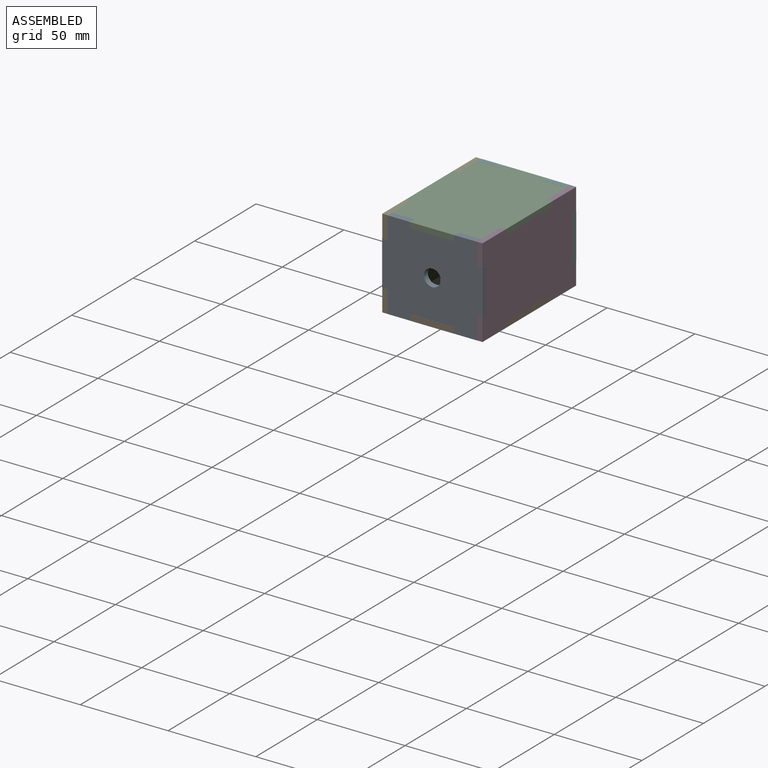
[diagram: assembled view]
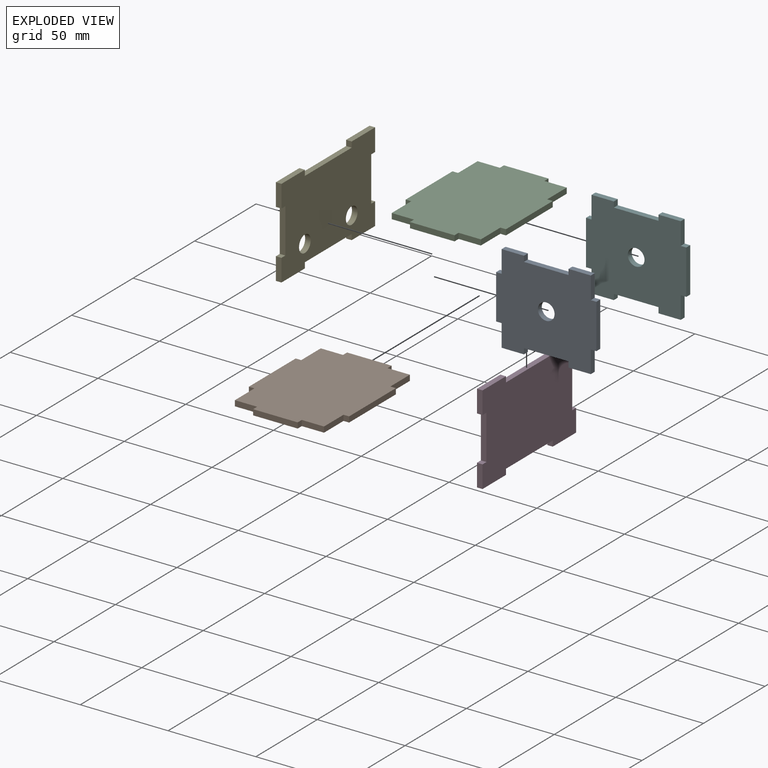
[diagram: exploded view]
GUIDED TOUR — MATED ASSEMBLY (Onshape document 883d8a91d88ea4fd51138d00, AutoMate assembly 883d8a91d88ea4fd51138d00_9885f30605e55b3c3056eece_a26b421365d5f6ebd6190608_default)

This assembly has 6 components, labeled P0..P5 below (a component is one placed occurrence of a part; the same part can appear more than once), held together by 7 mates. A mate is a constraint between two components; its type names the relative motion it leaves free:
  FASTENED — locks the two components together rigidly (no relative motion),
  PARALLEL — keeps the two listed directions parallel.
Axis/direction vectors are unit vectors and 'through' points are millimeter coordinates, both in the assembly's world frame.

MATES
  1. PARALLEL "Parallel 1": P3 <-> P2, direction (0.000, 0.000, 1.000) through (17.59, 37.98, 21.22) mm
  2. PARALLEL "Parallel 2": P3 <-> P2, direction (1.000, 0.000, 0.000) through (19.18, 37.98, -1.01) mm
  3. FASTENED "Fastened 1": P3 <-> P2, direction (-1.000, 0.000, 0.000) through (19.18, 57.03, 24.39) mm
  4. FASTENED "Fastened 2": P4 <-> P2, direction (0.000, -1.000, 0.000) through (-36.35, 57.03, 22.81) mm
  5. FASTENED "Fastened 4": P0 <-> P2, direction (-1.000, 0.000, 0.000) through (3.32, 1.40, 22.81) mm
  6. FASTENED "Fastened 3": P3 <-> P1, direction (0.000, 1.000, 0.000) through (17.59, 18.93, -24.82) mm
  7. FASTENED "Fastened 5": P5 <-> P2, direction (1.000, 0.000, 0.000) through (-22.08, 74.55, 22.81) mm

ASSEMBLY ORDER
  1. P2 — the base component [order heuristic]
  2. P0 — core [order heuristic]
  3. P5 — core [order heuristic]
  4. P1 — core [order heuristic]
  5. P4 [order verified]
  6. P3 [order verified]
Order-tag legend:
  [order verified] — this step's position reverses a verified removal order: the component was checked to insert without passing through the ones already placed.
  [order heuristic] — the first 4 components form the assembly's core: parts whose collision-free extraction could not be verified, listed in mate-graph order.

Of the 6 components, 6 carry the full construction recipe — the FeatureScript program that regenerates the part's solid from scratch; the rest are supplied as boundary geometry only.
Each toured component is shown spotlighted twice — in the assembled view, then in the exploded view, where a leader line traces a displaced component back to its assembled socket (saturated green if recipe-attached, orange if geometry-only; every other component desaturated gray) — followed by its recipe or geometry summary and the mates that hold it.
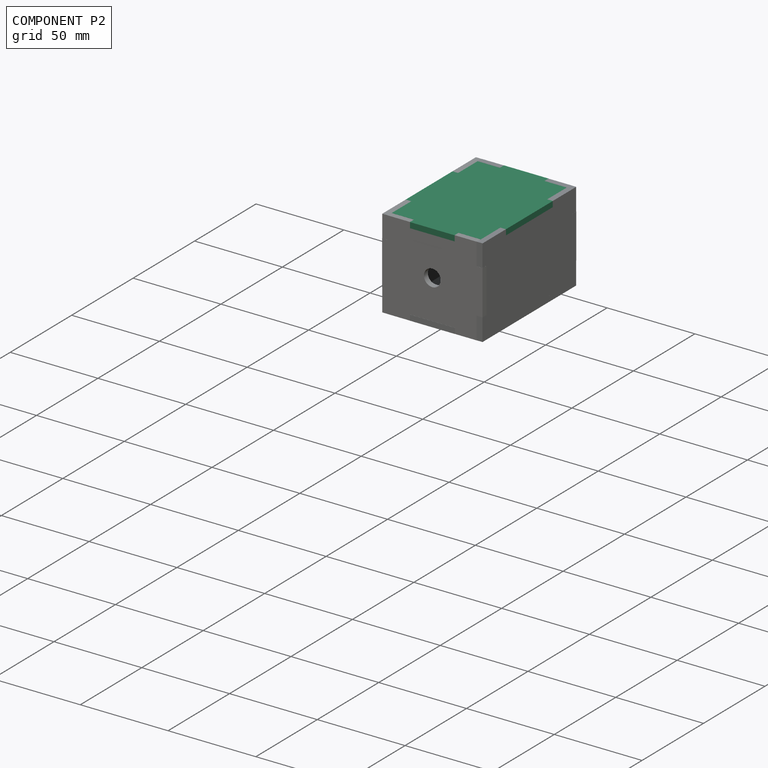
[diagram: component P2 — assembled]
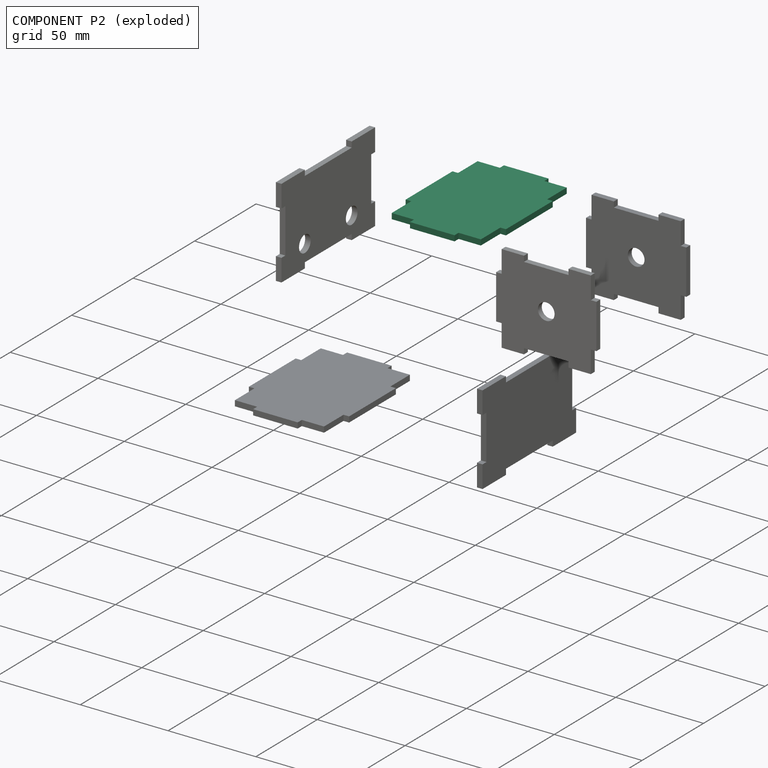
[diagram: component P2 — exploded]
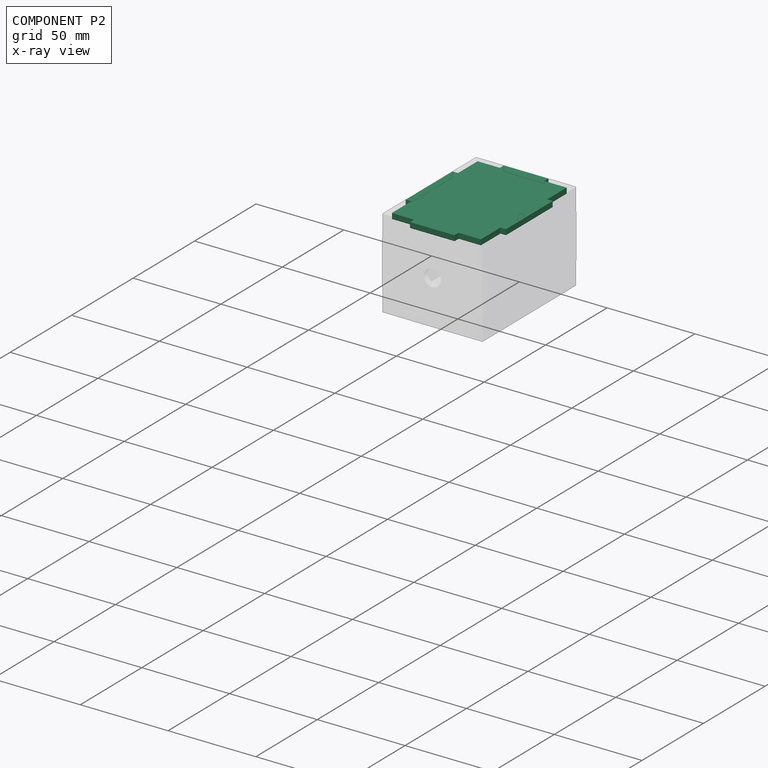
[diagram: component P2 — x-ray view]
COMPONENT P2 — same part as P1 (CADFS 00655369); its construction recipe is shown at P1.
Held by: PARALLEL mate "Parallel 1" to P3; PARALLEL mate "Parallel 2" to P3; FASTENED mate "Fastened 1" to P3; FASTENED mate "Fastened 2" to P4; FASTENED mate "Fastened 4" to P0; FASTENED mate "Fastened 5" to P5.
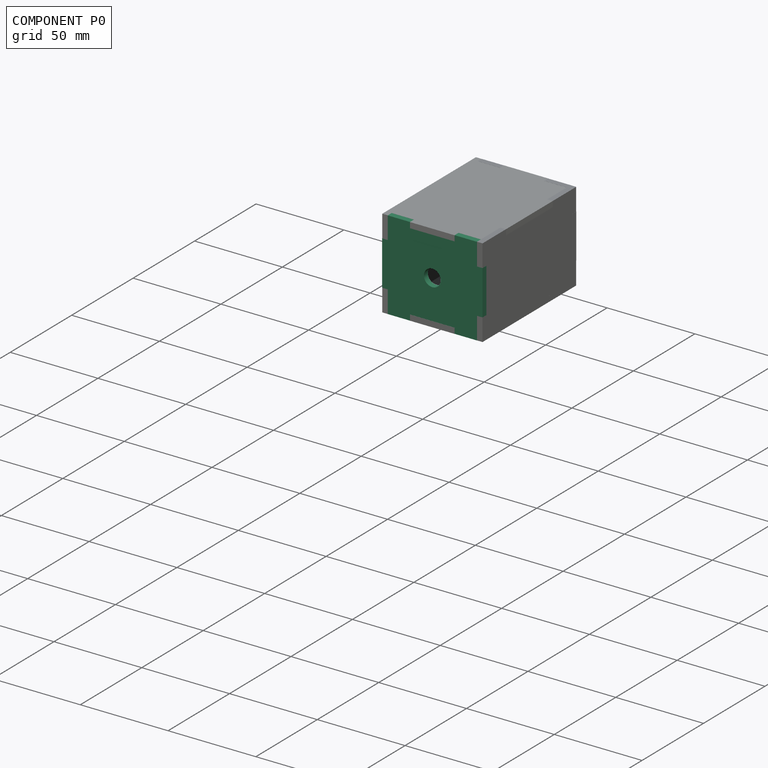
[diagram: component P0 — assembled]
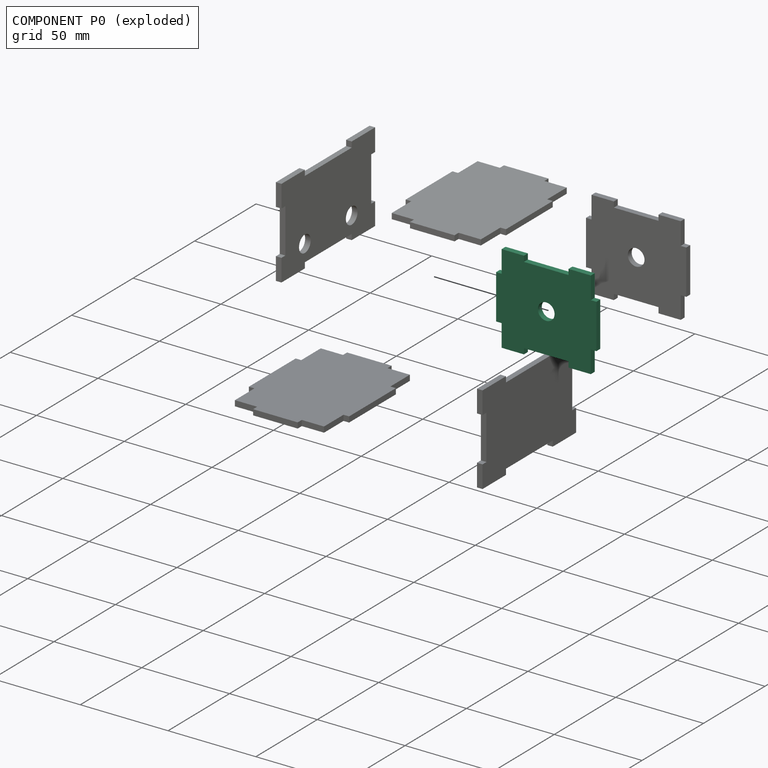
[diagram: component P0 — exploded]
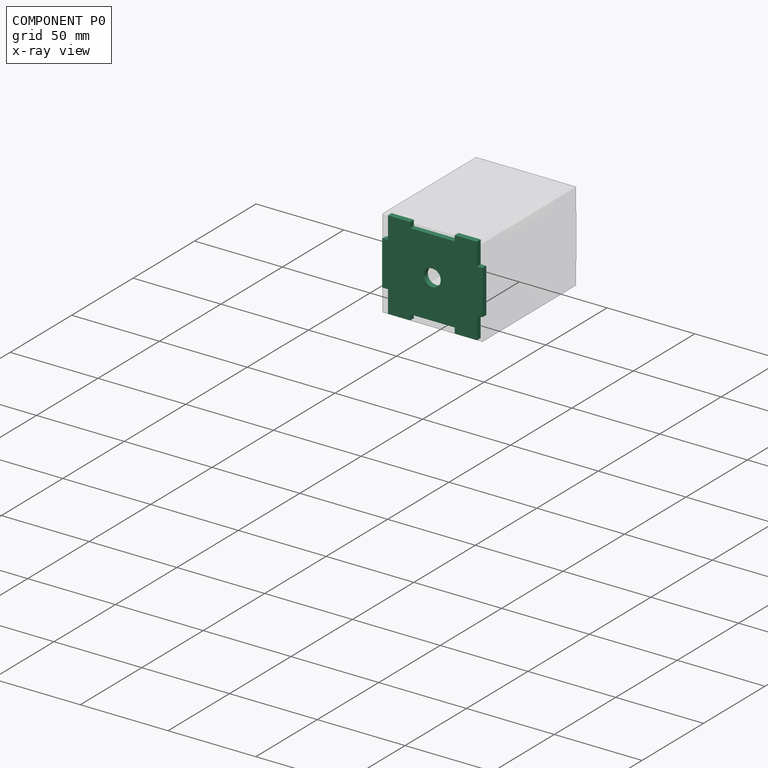
[diagram: component P0 — x-ray view]
COMPONENT P0 — recipe-attached (CADFS 00655371, mesh-verified: the recipe's output STEP matches this component's geometry to below the mesh-comparison resolution (tessellation chordal tolerance ~0.115 mm)).
Held by: FASTENED mate "Fastened 4" to P2.
Construction recipe (FeatureScript — the CAD program that rebuilds this solid; sketch coordinates are in the units given by the * unit suffixes, e.g. mm):

FeatureScript 1511;
import(path : "onshape/std/geometry.fs", version : "1511.0");
import(path : "onshape/std/common.fs", version : "1511.0");
const mm = millimeter;
const VERTEX = EntityType.VERTEX;
const EDGE = EntityType.EDGE;
const FACE = EntityType.FACE;
const BODY = EntityType.BODY;
function v(x, y){return vector(x, y);}
function OD(order){return orderDisambiguation(order);}
function OSD(set){return originalSetDisambiguation(set);}
function TD(topology){return topologyDisambiguation(topology);}
function TDD(query){return trueDependencyDisambiguation(query);}
function sQuery(a, b, c) {return sketchEntityQuery(a, b, c);}

annotation { "Feature Type Name" : "Feature", "Feature Type Description" : "" }
export const myFeature = defineFeature(function(context is Context, id is Id, definition is map)
    precondition{}
    {
        {
            var Q0;
            Q0=qCreatedBy(makeId("Top.planeOp"),FACE);
            var sketch = newSketch(context, id + "F0", { "sketchPlane" : qUnion([Q0])});
            skLineSegment(sketch, "E0.bottom", {"start": v(25.4, 25.4) * mm, "end": v(-25.4, 25.4) * mm});
            skLineSegment(sketch, "E0.top", {"start": v(25.4, -25.4) * mm, "end": v(-25.4, -25.4) * mm});
            skLineSegment(sketch, "E0.left", {"start": v(25.4, 25.4) * mm, "end": v(25.4, -25.4) * mm});
            skLineSegment(sketch, "E0.right", {"start": v(-25.4, 25.4) * mm, "end": v(-25.4, -25.4) * mm});
            skPoint(sketch, "E0.middle", {"position": v(0, 0) * mm});
            skLineSegment(sketch, "E1.bottom", {"start": v(12.7, 22.22) * mm, "end": v(-12.7, 22.22) * mm});
            skLineSegment(sketch, "E1.top", {"start": v(12.7, 28.58) * mm, "end": v(-12.7, 28.58) * mm});
            skLineSegment(sketch, "E1.left", {"start": v(12.7, 22.23) * mm, "end": v(12.7, 28.58) * mm});
            skLineSegment(sketch, "E1.right", {"start": v(-12.7, 22.22) * mm, "end": v(-12.7, 28.57) * mm});
            skPoint(sketch, "E1.middle", {"position": v(0, 25.4) * mm});
            skLineSegment(sketch, "E2.bottom", {"start": v(28.57, 12.7) * mm, "end": v(22.22, 12.7) * mm});
            skLineSegment(sketch, "E2.top", {"start": v(28.57, -12.7) * mm, "end": v(22.22, -12.7) * mm});
            skLineSegment(sketch, "E2.left", {"start": v(28.57, 12.7) * mm, "end": v(28.57, -12.7) * mm});
            skLineSegment(sketch, "E2.right", {"start": v(22.22, 12.7) * mm, "end": v(22.22, -12.7) * mm});
            skPoint(sketch, "E2.middle", {"position": v(25.4, 0) * mm});
            skLineSegment(sketch, "E3.bottom", {"start": v(-22.22, 12.7) * mm, "end": v(-28.57, 12.7) * mm});
            skLineSegment(sketch, "E3.top", {"start": v(-22.22, -12.7) * mm, "end": v(-28.57, -12.7) * mm});
            skLineSegment(sketch, "E3.left", {"start": v(-22.22, 12.7) * mm, "end": v(-22.22, -12.7) * mm});
            skLineSegment(sketch, "E3.right", {"start": v(-28.57, 12.7) * mm, "end": v(-28.57, -12.7) * mm});
            skPoint(sketch, "E3.middle", {"position": v(-25.4, 0) * mm});
            skLineSegment(sketch, "E4.bottom", {"start": v(12.7, -22.23) * mm, "end": v(-12.7, -22.23) * mm});
            skLineSegment(sketch, "E4.top", {"start": v(12.7, -28.58) * mm, "end": v(-12.7, -28.58) * mm});
            skLineSegment(sketch, "E4.left", {"start": v(12.7, -22.23) * mm, "end": v(12.7, -28.58) * mm});
            skLineSegment(sketch, "E4.right", {"start": v(-12.7, -22.23) * mm, "end": v(-12.7, -28.58) * mm});
            skPoint(sketch, "E4.middle", {"position": v(0, -25.4) * mm});
            skCircle(sketch, "E5", {"center": v(0, 0) * mm, "radius": 4.76 * mm});
            skSolve(sketch);
        }
        {
            var Q0;
            {var subQ0=sQuery(id+"F0.wireOp",EDGE,"E1.bottom");Q0=makeQuery(id+"F0.imprint","IMPRINT",FACE,{"disambiguationData":[TD([[makeQuery(id+"F0.imprint","IMPRINT",EDGE,{"derivedFrom":subQ0}),1.0]])]});}
            var Q1;
            {var subQ5=sQuery(id+"F0.wireOp",EDGE,"E3.right");Q1=makeQuery(id+"F0.imprint","IMPRINT",FACE,{"disambiguationData":[TD([[makeQuery(id+"F0.imprint","IMPRINT",EDGE,{"derivedFrom":subQ5}),1.0]])]});}
            var Q2;
            {var subQ5=sQuery(id+"F0.wireOp",EDGE,"E3.left");Q2=makeQuery(id+"F0.imprint","IMPRINT",FACE,{"disambiguationData":[TD([[makeQuery(id+"F0.imprint","IMPRINT",EDGE,{"derivedFrom":subQ5}),-1.0]])]});}
            var Q3;
            {var subQ5=sQuery(id+"F0.wireOp",EDGE,"E2.left");Q3=makeQuery(id+"F0.imprint","IMPRINT",FACE,{"disambiguationData":[TD([[makeQuery(id+"F0.imprint","IMPRINT",EDGE,{"derivedFrom":subQ5}),-1.0]])]});}
            var Q4;
            {var subQ5=sQuery(id+"F0.wireOp",EDGE,"E2.right");Q4=makeQuery(id+"F0.imprint","IMPRINT",FACE,{"disambiguationData":[TD([[makeQuery(id+"F0.imprint","IMPRINT",EDGE,{"derivedFrom":subQ5}),1.0]])]});}
            extrude(context, id + "F1", {"entities" : qUnion([Q0, Q1, Q2, Q3, Q4]), "depth" : 3.17 * mm, "offsetDistance" : 25.4 * mm});
        }
    });
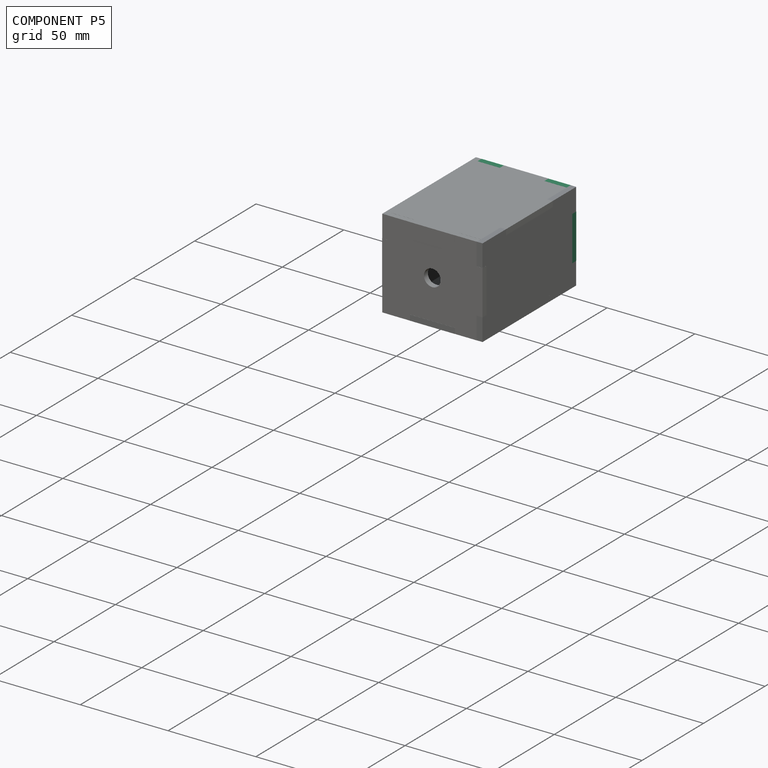
[diagram: component P5 — assembled]
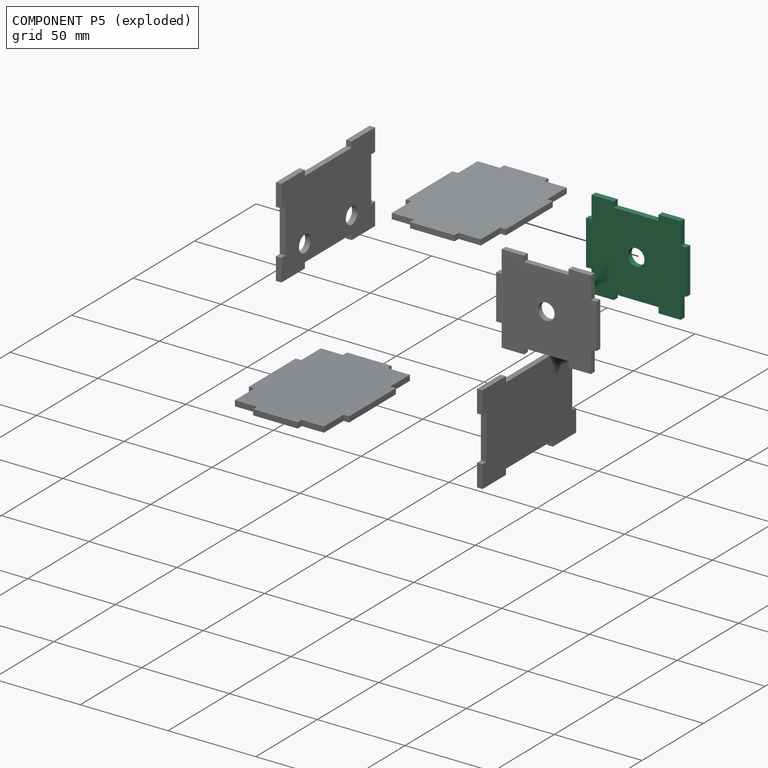
[diagram: component P5 — exploded]
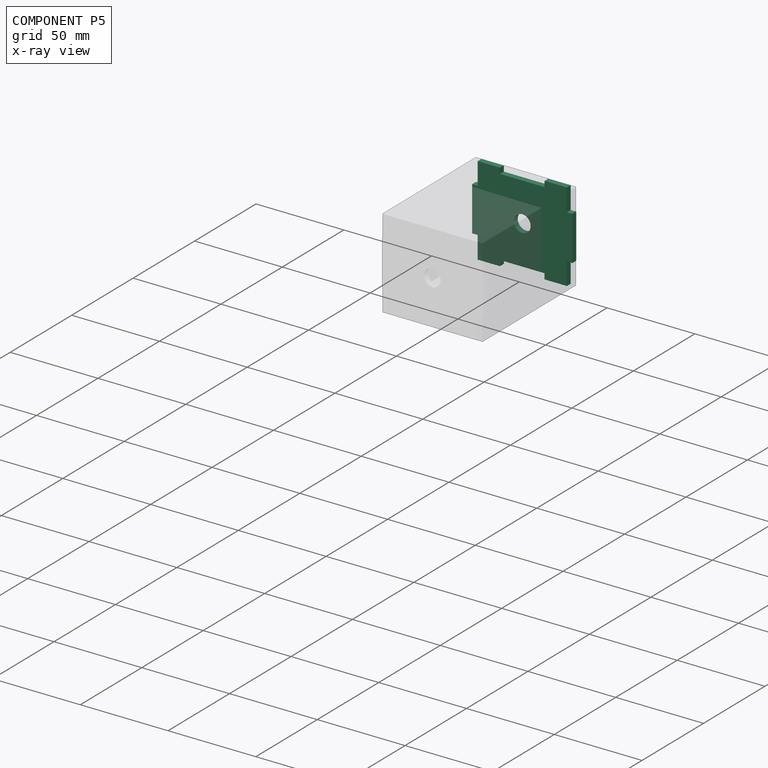
[diagram: component P5 — x-ray view]
COMPONENT P5 — same part as P0 (CADFS 00655371); its construction recipe is shown at P0.
Held by: FASTENED mate "Fastened 5" to P2.
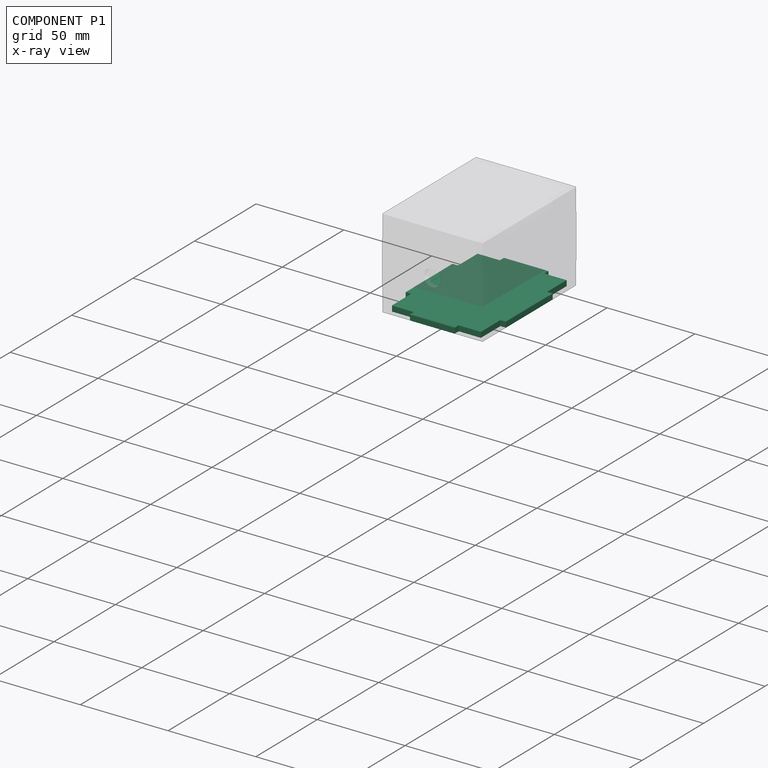
[diagram: component P1 — x-ray view]
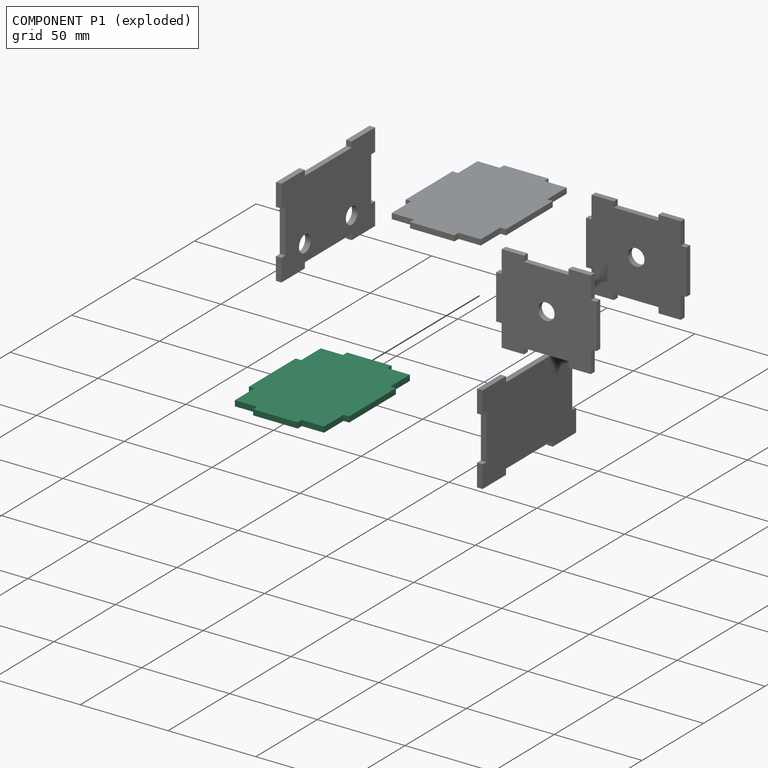
[diagram: component P1 — exploded]
COMPONENT P1 — recipe-attached (CADFS 00655369, mesh-verified: the recipe's output STEP matches this component's geometry to below the mesh-comparison resolution (tessellation chordal tolerance ~0.143 mm)).
Held by: FASTENED mate "Fastened 3" to P3.
Construction recipe (FeatureScript — the CAD program that rebuilds this solid; sketch coordinates are in the units given by the * unit suffixes, e.g. mm):

FeatureScript 1511;
import(path : "onshape/std/geometry.fs", version : "1511.0");
import(path : "onshape/std/common.fs", version : "1511.0");
const mm = millimeter;
const VERTEX = EntityType.VERTEX;
const EDGE = EntityType.EDGE;
const FACE = EntityType.FACE;
const BODY = EntityType.BODY;
function v(x, y){return vector(x, y);}
function OD(order){return orderDisambiguation(order);}
function OSD(set){return originalSetDisambiguation(set);}
function TD(topology){return topologyDisambiguation(topology);}
function TDD(query){return trueDependencyDisambiguation(query);}
function sQuery(a, b, c) {return sketchEntityQuery(a, b, c);}

annotation { "Feature Type Name" : "Feature", "Feature Type Description" : "" }
export const myFeature = defineFeature(function(context is Context, id is Id, definition is map)
    precondition{}
    {
        {
            var Q0;
            Q0=qCreatedBy(makeId("Top.planeOp"),FACE);
            var sketch = newSketch(context, id + "F0", { "sketchPlane" : qUnion([Q0])});
            skLineSegment(sketch, "E0.bottom", {"start": v(25.38, 34.92) * mm, "end": v(12.7, 34.92) * mm});
            skLineSegment(sketch, "E0.top", {"start": v(25.38, -34.92) * mm, "end": v(12.7, -34.92) * mm});
            skLineSegment(sketch, "E0.left", {"start": v(25.38, 34.92) * mm, "end": v(25.38, 19.05) * mm});
            skLineSegment(sketch, "E0.right", {"start": v(-25.38, 34.92) * mm, "end": v(-25.38, 19.05) * mm});
            skPoint(sketch, "E0.middle", {"position": v(0, 0) * mm});
            skLineSegment(sketch, "E1.bottom", {"start": v(28.56, 19.05) * mm, "end": v(25.38, 19.05) * mm});
            skLineSegment(sketch, "E1.top", {"start": v(28.56, -19.05) * mm, "end": v(25.38, -19.05) * mm});
            skLineSegment(sketch, "E1.left", {"start": v(28.56, 19.05) * mm, "end": v(28.56, -19.05) * mm});
            skPoint(sketch, "E1.middle", {"position": v(25.38, 0) * mm});
            skLineSegment(sketch, "E2.MirrorCS", {"start": v(-28.56, 19.05) * mm, "end": v(-28.56, -19.05) * mm});
            skLineSegment(sketch, "E3.MirrorCS", {"start": v(-28.56, 19.05) * mm, "end": v(-25.38, 19.05) * mm});
            skLineSegment(sketch, "E4.MirrorCS", {"start": v(-28.56, -19.05) * mm, "end": v(-25.38, -19.05) * mm});
            skLineSegment(sketch, "E5.bottom", {"start": v(12.7, 38.22) * mm, "end": v(-12.7, 38.22) * mm});
            skLineSegment(sketch, "E5.left", {"start": v(12.7, 38.22) * mm, "end": v(12.7, 34.92) * mm});
            skLineSegment(sketch, "E5.right", {"start": v(-12.7, 38.22) * mm, "end": v(-12.7, 34.92) * mm});
            skPoint(sketch, "E5.middle", {"position": v(0, 34.92) * mm});
            skLineSegment(sketch, "E6.MirrorCS", {"start": v(12.7, -38.22) * mm, "end": v(12.7, -34.92) * mm});
            skLineSegment(sketch, "E7.MirrorCS", {"start": v(12.7, -38.22) * mm, "end": v(-12.7, -38.22) * mm});
            skLineSegment(sketch, "E8.MirrorCS", {"start": v(-12.7, -38.22) * mm, "end": v(-12.7, -34.92) * mm});
            skPoint(sketch, "E9.orphan", {"position": v(-12.7, 31.63) * mm});
            skLineSegment(sketch, "E10.trimOffspring", {"start": v(-12.7, 34.92) * mm, "end": v(-25.38, 34.92) * mm});
            skPoint(sketch, "E11.orphan", {"position": v(12.7, 31.63) * mm});
            skLineSegment(sketch, "E12.trimOffspring", {"start": v(25.38, -19.05) * mm, "end": v(25.38, -34.92) * mm});
            skPoint(sketch, "E13.orphan", {"position": v(22.2, -19.05) * mm});
            skPoint(sketch, "E14.orphan", {"position": v(22.2, 19.05) * mm});
            skPoint(sketch, "E15.orphan", {"position": v(-22.2, 19.05) * mm});
            skPoint(sketch, "E16.MirrorCS.end.orphan", {"position": v(-22.2, -19.05) * mm});
            skLineSegment(sketch, "E17.trimOffspring", {"start": v(-25.38, -19.05) * mm, "end": v(-25.38, -34.92) * mm});
            skPoint(sketch, "E18.MirrorCS.end.orphan", {"position": v(-12.7, -31.63) * mm});
            skPoint(sketch, "E18.MirrorCS.start.orphan", {"position": v(12.7, -31.63) * mm});
            skLineSegment(sketch, "E19.trimOffspring", {"start": v(-12.7, -34.92) * mm, "end": v(-25.38, -34.92) * mm});
            skSolve(sketch);
        }
        {
            var Q0;
            Q0=makeQuery(id+"F0.imprint","IMPRINT",FACE,{"disambiguationData":[TD([[makeQuery(id+"F0.imprint","IMPRINT",EDGE,{"derivedFrom":sQuery(id+"F0.wireOp",EDGE,"E0.bottom")}),1.0]])]});
            extrude(context, id + "F1", {"entities" : qUnion([Q0]), "depth" : 3.17 * mm, "offsetDistance" : 25.4 * mm});
        }
    });
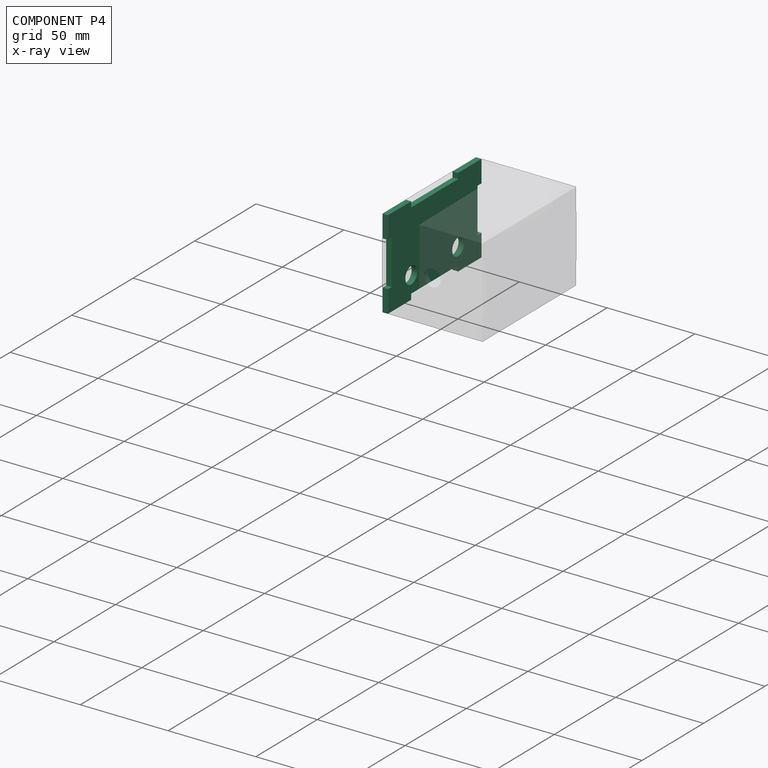
[diagram: component P4 — x-ray view]
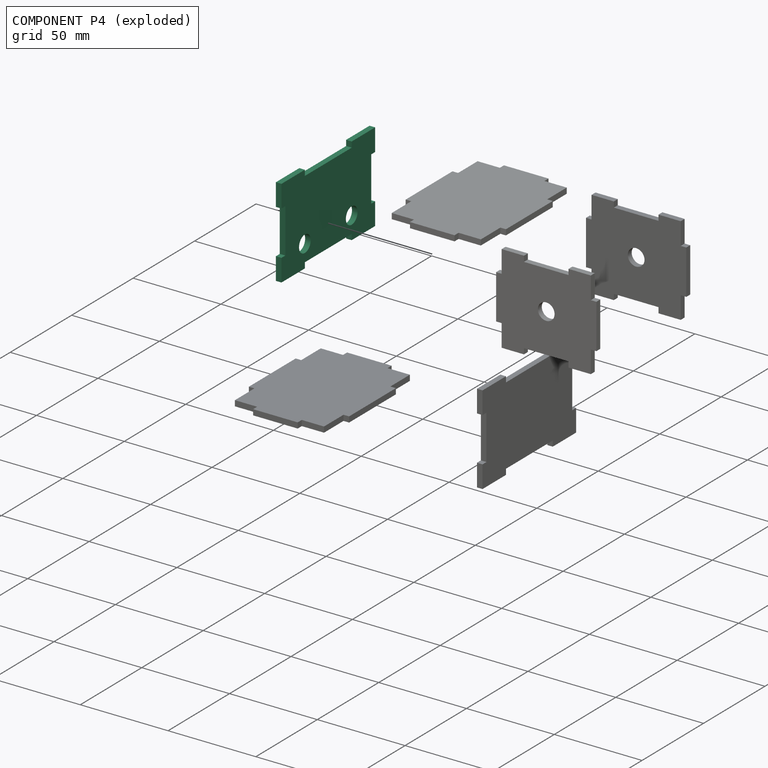
[diagram: component P4 — exploded]
COMPONENT P4 — recipe-attached (CADFS 00655374, mesh-verified: the recipe's output STEP matches this component's geometry to below the mesh-comparison resolution (tessellation chordal tolerance ~0.137 mm)).
Held by: FASTENED mate "Fastened 2" to P2.
Construction recipe (FeatureScript — the CAD program that rebuilds this solid; sketch coordinates are in the units given by the * unit suffixes, e.g. mm):

FeatureScript 1511;
import(path : "onshape/std/geometry.fs", version : "1511.0");
import(path : "onshape/std/common.fs", version : "1511.0");
const mm = millimeter;
const VERTEX = EntityType.VERTEX;
const EDGE = EntityType.EDGE;
const FACE = EntityType.FACE;
const BODY = EntityType.BODY;
function v(x, y){return vector(x, y);}
function OD(order){return orderDisambiguation(order);}
function OSD(set){return originalSetDisambiguation(set);}
function TD(topology){return topologyDisambiguation(topology);}
function TDD(query){return trueDependencyDisambiguation(query);}
function sQuery(a, b, c) {return sketchEntityQuery(a, b, c);}

annotation { "Feature Type Name" : "Feature", "Feature Type Description" : "" }
export const myFeature = defineFeature(function(context is Context, id is Id, definition is map)
    precondition{}
    {
        {
            var Q0;
            Q0=qCreatedBy(makeId("Top.planeOp"),FACE);
            var sketch = newSketch(context, id + "F0", { "sketchPlane" : qUnion([Q0])});
            skLineSegment(sketch, "E0.bottom", {"start": v(25.4, 38.1) * mm, "end": v(12.7, 38.1) * mm});
            skLineSegment(sketch, "E0.top", {"start": v(25.4, -38.1) * mm, "end": v(12.7, -38.1) * mm});
            skLineSegment(sketch, "E0.left", {"start": v(25.4, 38.1) * mm, "end": v(25.4, 19.05) * mm});
            skLineSegment(sketch, "E0.right", {"start": v(-25.4, 38.1) * mm, "end": v(-25.4, 19.05) * mm});
            skPoint(sketch, "E0.middle", {"position": v(0, 0) * mm});
            skLineSegment(sketch, "E1.bottom", {"start": v(28.58, 19.05) * mm, "end": v(22.22, 19.05) * mm, "construction": true});
            skLineSegment(sketch, "E1.top", {"start": v(25.4, -19.05) * mm, "end": v(22.22, -19.05) * mm});
            skLineSegment(sketch, "E1.left", {"start": v(28.58, 19.05) * mm, "end": v(28.58, -19.05) * mm, "construction": true});
            skLineSegment(sketch, "E1.right", {"start": v(22.22, 19.05) * mm, "end": v(22.22, -19.05) * mm});
            skPoint(sketch, "E1.middle", {"position": v(25.4, 0) * mm});
            skLineSegment(sketch, "E2.bottom", {"start": v(12.7, 41.28) * mm, "end": v(-12.7, 41.28) * mm, "construction": true});
            skLineSegment(sketch, "E2.top", {"start": v(12.7, 34.93) * mm, "end": v(-12.7, 34.93) * mm});
            skLineSegment(sketch, "E2.left", {"start": v(12.7, 41.28) * mm, "end": v(12.7, 38.1) * mm, "construction": true});
            skLineSegment(sketch, "E2.right", {"start": v(-12.7, 41.28) * mm, "end": v(-12.7, 38.1) * mm, "construction": true});
            skPoint(sketch, "E2.middle", {"position": v(0, 38.1) * mm});
            skCircle(sketch, "E3", {"center": v(12.7, 19.05) * mm, "radius": 4.76 * mm});
            skCircle(sketch, "E4.MirrorC", {"center": v(12.7, -19.05) * mm, "radius": 4.76 * mm});
            skLineSegment(sketch, "E5.MirrorCS", {"start": v(-22.22, 19.05) * mm, "end": v(-22.22, -19.05) * mm});
            skLineSegment(sketch, "E6.MirrorCS", {"start": v(-25.4, 19.05) * mm, "end": v(-22.22, 19.05) * mm});
            skLineSegment(sketch, "E7.MirrorCS", {"start": v(-25.4, -19.05) * mm, "end": v(-22.22, -19.05) * mm});
            skLineSegment(sketch, "E8.MirrorCS", {"start": v(12.7, -34.93) * mm, "end": v(-12.7, -34.93) * mm});
            skLineSegment(sketch, "E9.MirrorCS", {"start": v(12.7, -41.28) * mm, "end": v(-12.7, -41.28) * mm, "construction": true});
            skLineSegment(sketch, "E10.MirrorCS", {"start": v(12.7, -41.28) * mm, "end": v(12.7, -34.93) * mm, "construction": true});
            skLineSegment(sketch, "E11.MirrorCS", {"start": v(-12.7, -41.28) * mm, "end": v(-12.7, -34.93) * mm, "construction": true});
            skPoint(sketch, "E12.orphan", {"position": v(-28.58, 19.05) * mm});
            skLineSegment(sketch, "E13.trimOffspring", {"start": v(-25.4, -19.05) * mm, "end": v(-25.4, -38.1) * mm});
            skPoint(sketch, "E14.MirrorCS.end.orphan", {"position": v(-28.58, -19.05) * mm});
            skLineSegment(sketch, "E15", {"start": v(25.4, 19.05) * mm, "end": v(22.22, 19.05) * mm});
            skLineSegment(sketch, "E16.trimOffspring", {"start": v(25.4, -19.05) * mm, "end": v(25.4, -38.1) * mm});
            skLineSegment(sketch, "E17", {"start": v(-12.7, -38.1) * mm, "end": v(-12.7, -34.93) * mm});
            skLineSegment(sketch, "E18", {"start": v(12.7, -38.1) * mm, "end": v(12.7, -34.93) * mm});
            skLineSegment(sketch, "E19.trimOffspring", {"start": v(-12.7, -38.1) * mm, "end": v(-25.4, -38.1) * mm});
            skLineSegment(sketch, "E20", {"start": v(12.7, 38.1) * mm, "end": v(12.7, 34.93) * mm});
            skLineSegment(sketch, "E21", {"start": v(-12.7, 38.1) * mm, "end": v(-12.7, 34.93) * mm});
            skLineSegment(sketch, "E22", {"start": v(-12.7, 38.1) * mm, "end": v(-12.7, 34.93) * mm, "construction": true});
            skLineSegment(sketch, "E23", {"start": v(12.7, 38.1) * mm, "end": v(12.7, 34.93) * mm, "construction": true});
            skLineSegment(sketch, "E24", {"start": v(-25.4, 38.1) * mm, "end": v(-12.7, 38.1) * mm});
            skLineSegment(sketch, "E25", {"start": v(12.7, 38.1) * mm, "end": v(25.4, 38.1) * mm});
            skLineSegment(sketch, "E26.trimOffspring", {"start": v(0, 38.1) * mm, "end": v(-25.4, 38.1) * mm, "construction": true});
            skLineSegment(sketch, "E27", {"start": v(-12.7, 38.1) * mm, "end": v(-25.4, 38.1) * mm, "construction": true});
            skSolve(sketch);
        }
        {
            var Q0;
            Q0=makeQuery(id+"F0.imprint","IMPRINT",FACE,{"disambiguationData":[TD([[makeQuery(id+"F0.imprint","IMPRINT",EDGE,{"derivedFrom":sQuery(id+"F0.wireOp",EDGE,"E0.top")}),-1.0]])]});
            extrude(context, id + "F1", {"entities" : qUnion([Q0]), "depth" : 3.17 * mm, "offsetDistance" : 25.4 * mm});
        }
    });
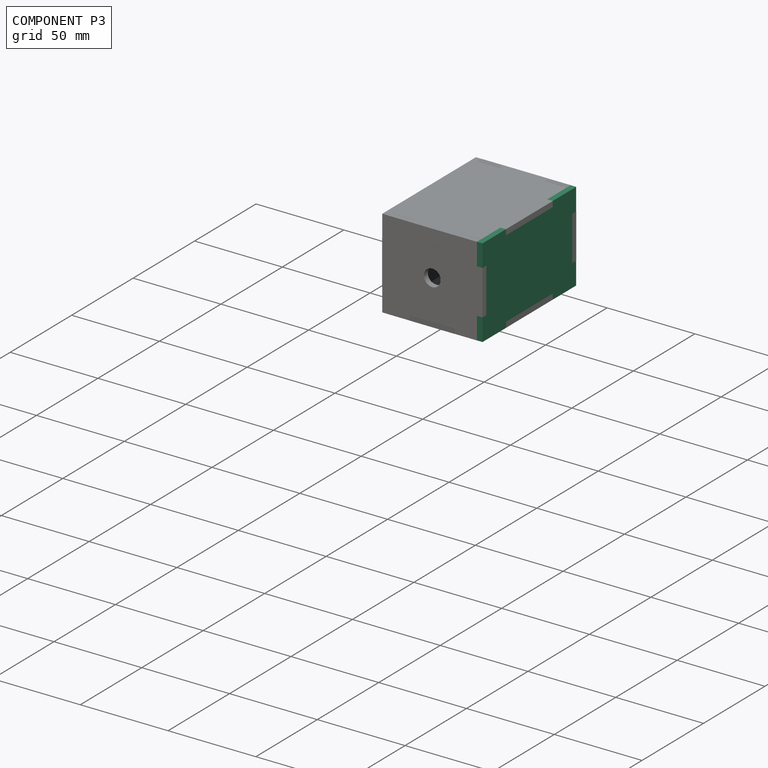
[diagram: component P3 — assembled]
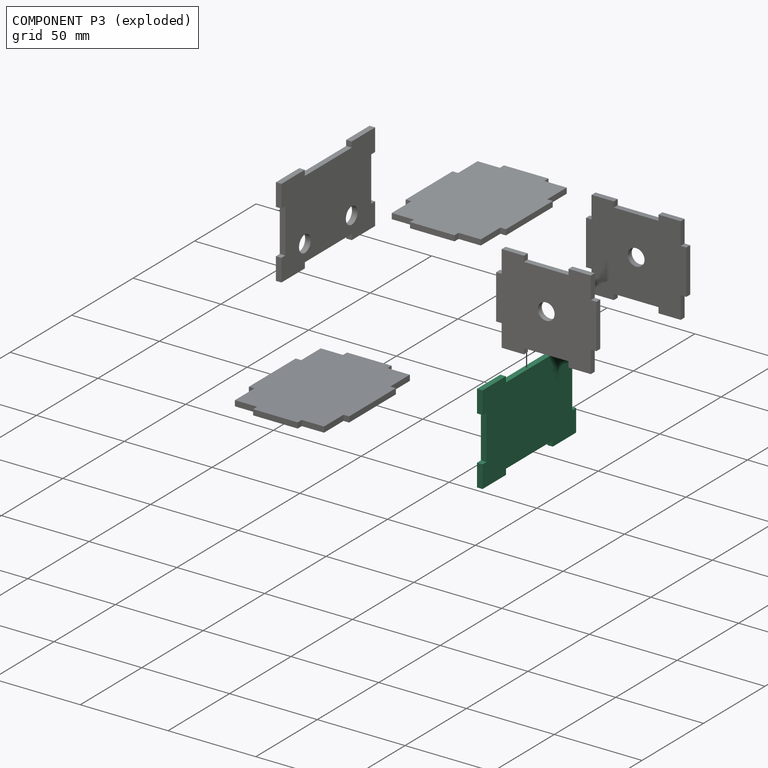
[diagram: component P3 — exploded]
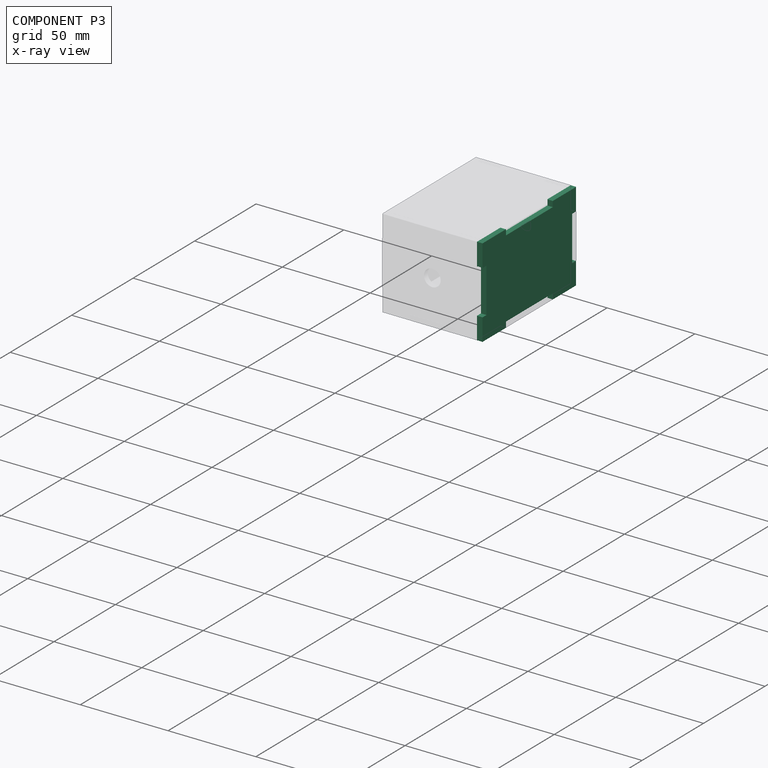
[diagram: component P3 — x-ray view]
COMPONENT P3 — recipe-attached (CADFS 00655373, mesh-verified: the recipe's output STEP matches this component's geometry to below the mesh-comparison resolution (tessellation chordal tolerance ~0.137 mm)).
Held by: PARALLEL mate "Parallel 1" to P2; PARALLEL mate "Parallel 2" to P2; FASTENED mate "Fastened 1" to P2; FASTENED mate "Fastened 3" to P1.
Construction recipe (FeatureScript — the CAD program that rebuilds this solid; sketch coordinates are in the units given by the * unit suffixes, e.g. mm):

FeatureScript 1511;
import(path : "onshape/std/geometry.fs", version : "1511.0");
import(path : "onshape/std/common.fs", version : "1511.0");
const mm = millimeter;
const VERTEX = EntityType.VERTEX;
const EDGE = EntityType.EDGE;
const FACE = EntityType.FACE;
const BODY = EntityType.BODY;
function v(x, y){return vector(x, y);}
function OD(order){return orderDisambiguation(order);}
function OSD(set){return originalSetDisambiguation(set);}
function TD(topology){return topologyDisambiguation(topology);}
function TDD(query){return trueDependencyDisambiguation(query);}
function sQuery(a, b, c) {return sketchEntityQuery(a, b, c);}

annotation { "Feature Type Name" : "Feature", "Feature Type Description" : "" }
export const myFeature = defineFeature(function(context is Context, id is Id, definition is map)
    precondition{}
    {
        {
            var Q0;
            Q0=qCreatedBy(makeId("Top.planeOp"),FACE);
            var sketch = newSketch(context, id + "F0", { "sketchPlane" : qUnion([Q0])});
            skLineSegment(sketch, "E0.bottom", {"start": v(25.36, 36.95) * mm, "end": v(-25.44, 36.95) * mm});
            skLineSegment(sketch, "E0.top", {"start": v(25.36, -39.25) * mm, "end": v(-25.44, -39.25) * mm});
            skLineSegment(sketch, "E0.left", {"start": v(25.36, 36.95) * mm, "end": v(25.36, -39.25) * mm});
            skLineSegment(sketch, "E0.right", {"start": v(-25.44, 36.95) * mm, "end": v(-25.44, -39.25) * mm});
            skPoint(sketch, "E0.middle", {"position": v(-0.04, -1.15) * mm});
            skLineSegment(sketch, "E1.bottom", {"start": v(12.66, 40.12) * mm, "end": v(-12.74, 40.12) * mm});
            skLineSegment(sketch, "E1.top", {"start": v(12.66, 33.77) * mm, "end": v(-12.74, 33.77) * mm});
            skLineSegment(sketch, "E1.left", {"start": v(12.66, 40.12) * mm, "end": v(12.66, 33.77) * mm});
            skLineSegment(sketch, "E1.right", {"start": v(-12.74, 40.12) * mm, "end": v(-12.74, 33.77) * mm});
            skPoint(sketch, "E1.middle", {"position": v(-0.04, 36.95) * mm});
            skLineSegment(sketch, "E2.bottom", {"start": v(28.53, 17.9) * mm, "end": v(22.18, 17.9) * mm});
            skLineSegment(sketch, "E2.top", {"start": v(28.53, -20.2) * mm, "end": v(22.18, -20.2) * mm});
            skLineSegment(sketch, "E2.left", {"start": v(28.53, 17.9) * mm, "end": v(28.53, -20.2) * mm});
            skLineSegment(sketch, "E2.right", {"start": v(22.18, 17.9) * mm, "end": v(22.18, -20.2) * mm});
            skPoint(sketch, "E2.middle", {"position": v(25.36, -1.15) * mm});
            skLineSegment(sketch, "E3.MirrorCS", {"start": v(-28.62, 17.9) * mm, "end": v(-22.27, 17.9) * mm});
            skLineSegment(sketch, "E4.MirrorCS", {"start": v(-22.27, 17.9) * mm, "end": v(-22.27, -20.2) * mm});
            skLineSegment(sketch, "E5.MirrorCS", {"start": v(-28.62, 17.9) * mm, "end": v(-28.62, -20.2) * mm});
            skLineSegment(sketch, "E6.MirrorCS", {"start": v(-28.62, -20.2) * mm, "end": v(-22.27, -20.2) * mm});
            skLineSegment(sketch, "E7.MirrorCS", {"start": v(12.66, -36.08) * mm, "end": v(-12.74, -36.08) * mm});
            skLineSegment(sketch, "E8.MirrorCS", {"start": v(12.66, -42.43) * mm, "end": v(-12.74, -42.43) * mm});
            skLineSegment(sketch, "E9.MirrorCS", {"start": v(12.66, -42.43) * mm, "end": v(12.66, -36.08) * mm});
            skLineSegment(sketch, "E10.MirrorCS", {"start": v(-12.74, -42.43) * mm, "end": v(-12.74, -36.08) * mm});
            skSolve(sketch);
        }
        {
            var Q0;
            {var subQ1=sQuery(id+"F0.wireOp",EDGE,"E1.top");Q0=makeQuery(id+"F0.imprint","IMPRINT",FACE,{"disambiguationData":[TD([[makeQuery(id+"F0.imprint","IMPRINT",EDGE,{"derivedFrom":subQ1}),1.0]])]});}
            extrude(context, id + "F1", {"entities" : qUnion([Q0]), "depth" : 3.17 * mm, "offsetDistance" : 25.4 * mm});
        }
    });
PROVENANCE & LICENSES
Assembly (occurrences, transforms, mates, per-part STEP geometry): AutoMate dataset, Zenodo record 7776208, CC0.
Construction recipes: CADFS (HuggingFace VladPyatov/CADFS, CC-BY-4.0, layered over the ABC dataset), FeatureScript reconstruction programs keyed by ABC model id.
Join: ABC meta listings map ABC model id -> Onshape documentId; within a shared document, parts are matched by geometric signature (bounding-box dims + volume at 0.1% relative tolerance, exact B-rep face/solid counts).
Verification: 6 of this assembly's 6 components carry a recipe attachment, and every attachment is mesh-verified: the CADFS STEP and the AutoMate member STEP were compared as meshes in their shared local frame (symmetric sampled-point-to-mesh distance); worst across the 6 attachments: below the mesh-comparison resolution (tessellation chordal tolerance ~0.143 mm) on a 95 mm part.
Renders: orthographic iso camera (az 35 / el 25); the floor grid conveys scale (grid pitch printed in each image; no ruler). In the exploded view each component is displaced by its stored offset vector: the offsets alone carry the explosion direction (mate normal/axis signs are not orientation cues and do not encode it), and separation distances are assigned per mate-chain, not proportionally to assembly-order depth.
